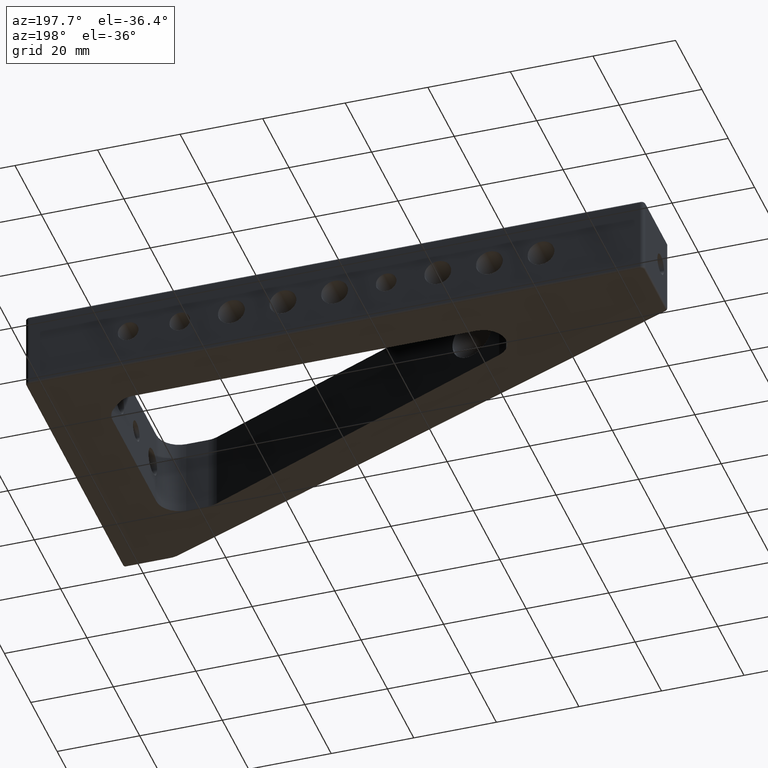
[diagram: clean part render]
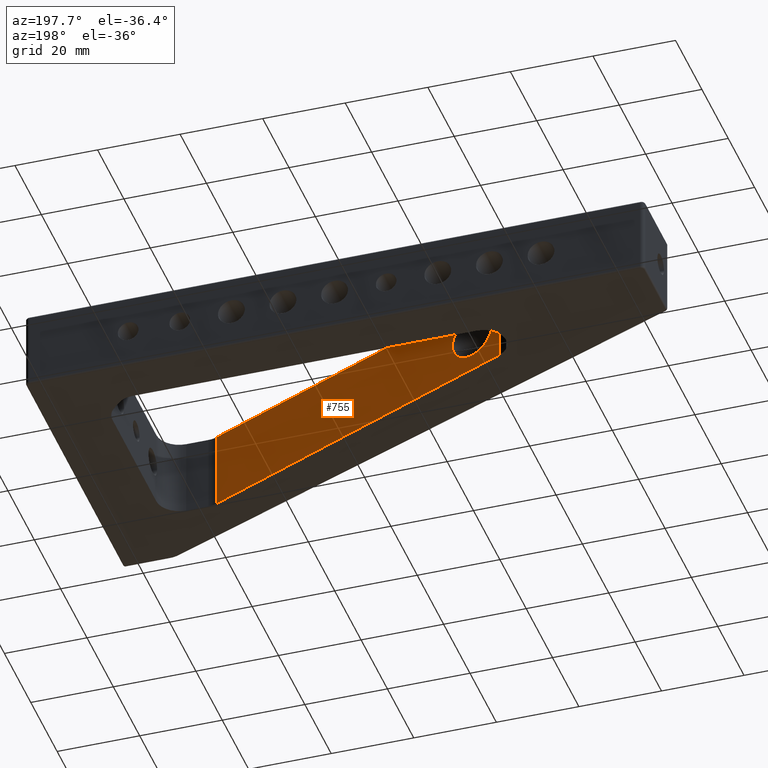
[diagram: same view with one face highlighted and labeled with its STEP entity id]
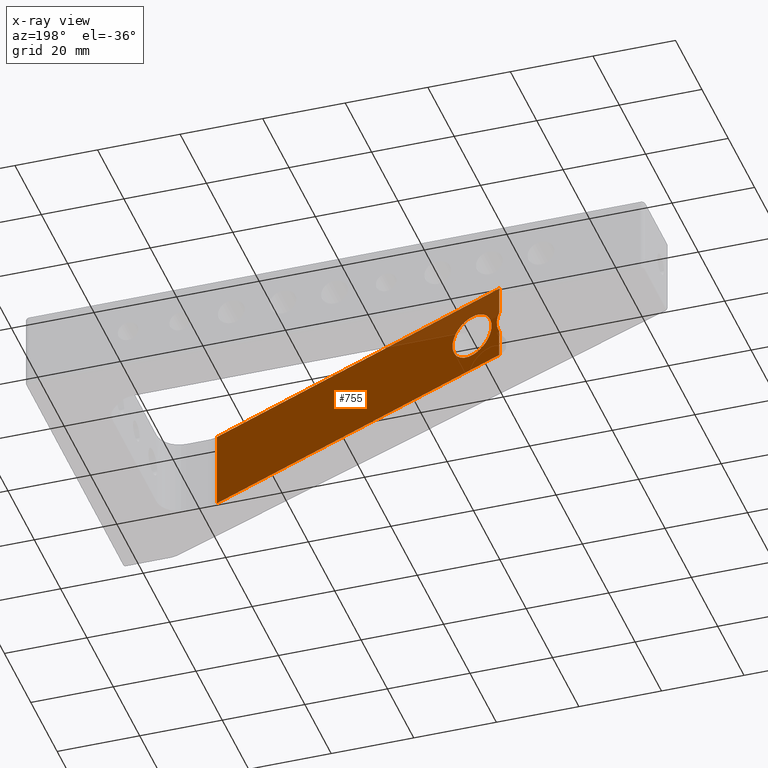
[diagram: x-ray of the same camera — body ghosted, the highlighted face saturated]
A machine part, auxiliary view. The second image highlights one B-rep face of the part: STEP entity #755.
The next image is the same camera in x-ray: the body ghosted, the highlighted face saturated — about 9% of this face is hidden behind the body in this view.
In plain terms, the highlighted planar face has unit normal (0.4043, 0.9146, -0).
Its self-contained STEP definition (entity closure, byte-faithful):
#72 = CARTESIAN_POINT ( 'NONE',  ( 776.6050239241548100, 597.4081516437140600, 9.500000000000000000 ) ) ;
#73 = DIRECTION ( 'NONE',  ( 0.9146457788347942500, -0.4042562297104307900, -0.0000000000000000000 ) ) ;
#168 = EDGE_CURVE ( 'NONE', #1269, #1252, #873, .T. ) ;
#169 = EDGE_CURVE ( 'NONE', #1213, #1275, #874, .T. ) ;
#170 = EDGE_CURVE ( 'NONE', #1275, #1269, #2053, .T. ) ;
#171 = EDGE_CURVE ( 'NONE', #1217, #1253, #864, .T. ) ;
#172 = EDGE_CURVE ( 'NONE', #1449, #1449, #2057, .T. ) ;
#215 = CARTESIAN_POINT ( 'NONE',  ( 776.6050239241548100, 597.4081516437140600, 9.500000000000000000 ) ) ;
#217 = PLANE ( 'NONE',  #644 ) ;
#219 = DIRECTION ( 'NONE',  ( 0.4042562297104308500, 0.9146457788347943700, -0.0000000000000000000 ) ) ;
#220 = DIRECTION ( 'NONE',  ( -0.9146457788347942500, 0.4042562297104307900, 0.0000000000000000000 ) ) ;
#397 = CARTESIAN_POINT ( 'NONE',  ( 696.9663568887308400, 632.6069444659131000, 9.500000000000000000 ) ) ;
#401 = CARTESIAN_POINT ( 'NONE',  ( 697.9224593770711600, 632.1843651504041200, 0.9786666869081022100 ) ) ;
#501 = DIRECTION ( 'NONE',  ( -0.0000000000000000000, -0.0000000000000000000, -1.000000000000000000 ) ) ;
#502 = CARTESIAN_POINT ( 'NONE',  ( 696.9663568887308400, 632.6069444659131000, 2.686595832992390200 ) ) ;
#503 = CARTESIAN_POINT ( 'NONE',  ( 696.9663568887308400, 632.6069444659131000, 9.500000000000000000 ) ) ;
#504 = DIRECTION ( 'NONE',  ( -0.0000000000000000000, -0.0000000000000000000, -1.000000000000000000 ) ) ;
#505 = CARTESIAN_POINT ( 'NONE',  ( 710.1671691626518200, 626.7724337488039100, -10.99999999999991800 ) ) ;
#506 = CARTESIAN_POINT ( 'NONE',  ( 697.9224593770711600, 632.1843651504041200, -0.9786666869080955500 ) ) ;
#507 = CARTESIAN_POINT ( 'NONE',  ( 696.9663568887308400, 632.6069444659131000, -2.686595832992383100 ) ) ;
#508 = CARTESIAN_POINT ( 'NONE',  ( 776.6050239241548100, 597.4081516437140600, 9.500000000000000000 ) ) ;
#510 = DIRECTION ( 'NONE',  ( -0.0000000000000000000, -0.0000000000000000000, -1.000000000000000000 ) ) ;
#511 = CARTESIAN_POINT ( 'NONE',  ( 710.1671691626518200, 626.7724337488039100, 0.0000000000000000000 ) ) ;
#512 = CARTESIAN_POINT ( 'NONE',  ( 699.1671691626518200, 631.6342268382330800, -10.99999999999991800 ) ) ;
#513 = CARTESIAN_POINT ( 'NONE',  ( 699.1671691626518200, 631.6342268382330800, -6.735557395310393700E-016 ) ) ;
#514 = CARTESIAN_POINT ( 'NONE',  ( 699.1671691626518200, 631.6342268382330800, 10.99999999999991800 ) ) ;
#515 = CARTESIAN_POINT ( 'NONE',  ( 710.1671691626518200, 626.7724337488039100, 10.99999999999991800 ) ) ;
#516 = CARTESIAN_POINT ( 'NONE',  ( 710.1671691626518200, 626.7724337488039100, 0.0000000000000000000 ) ) ;
#530 = CARTESIAN_POINT ( 'NONE',  ( 776.6050239241548100, 597.4081516437140600, -9.500000000000000000 ) ) ;
#531 = DIRECTION ( 'NONE',  ( 0.9146457788347942500, -0.4042562297104307900, -0.0000000000000000000 ) ) ;
#644 = AXIS2_PLACEMENT_3D ( 'NONE', #215, #219, #220 ) ;
#686 = EDGE_CURVE ( 'NONE', #1213, #1217, #833, .T. ) ;
#711 = EDGE_CURVE ( 'NONE', #1252, #1253, #1456, .T. ) ;
#755 = ADVANCED_FACE ( 'NONE', ( #1612, #1607 ), #217, .T. ) ;
#831 = VECTOR ( 'NONE', #73, 1000.000000000000100 ) ;
#833 = LINE ( 'NONE', #72, #831 ) ;
#863 = VECTOR ( 'NONE', #510, 1000.000000000000000 ) ;
#864 = LINE ( 'NONE', #508, #863 ) ;
#865 = VECTOR ( 'NONE', #504, 1000.000000000000000 ) ;
#866 = VECTOR ( 'NONE', #501, 1000.000000000000000 ) ;
#873 = LINE ( 'NONE', #397, #866 ) ;
#874 = LINE ( 'NONE', #503, #865 ) ;
#992 = ORIENTED_EDGE ( 'NONE', *, *, #172, .F. ) ;
#993 = ORIENTED_EDGE ( 'NONE', *, *, #168, .F. ) ;
#994 = ORIENTED_EDGE ( 'NONE', *, *, #711, .F. ) ;
#995 = ORIENTED_EDGE ( 'NONE', *, *, #171, .T. ) ;
#996 = ORIENTED_EDGE ( 'NONE', *, *, #686, .T. ) ;
#997 = ORIENTED_EDGE ( 'NONE', *, *, #169, .F. ) ;
#998 = ORIENTED_EDGE ( 'NONE', *, *, #170, .F. ) ;
#1213 = VERTEX_POINT ( 'NONE', #1892 ) ;
#1217 = VERTEX_POINT ( 'NONE', #1889 ) ;
#1252 = VERTEX_POINT ( 'NONE', #1926 ) ;
#1253 = VERTEX_POINT ( 'NONE', #1927 ) ;
#1269 = VERTEX_POINT ( 'NONE', #1943 ) ;
#1275 = VERTEX_POINT ( 'NONE', #1949 ) ;
#1343 = EDGE_LOOP ( 'NONE', ( #992 ) ) ;
#1347 = EDGE_LOOP ( 'NONE', ( #998, #997, #996, #995, #994, #993 ) ) ;
#1449 = VERTEX_POINT ( 'NONE', #1790 ) ;
#1456 = LINE ( 'NONE', #530, #1459 ) ;
#1459 = VECTOR ( 'NONE', #531, 1000.000000000000100 ) ;
#1607 = FACE_BOUND ( 'NONE', #1343, .T. ) ;
#1612 = FACE_OUTER_BOUND ( 'NONE', #1347, .T. ) ;
#1790 = CARTESIAN_POINT ( 'NONE',  ( 710.1671691626518200, 626.7724337488039100, 0.0000000000000000000 ) ) ;
#1889 = CARTESIAN_POINT ( 'NONE',  ( 776.6050239241548100, 597.4081516437140600, 9.500000000000000000 ) ) ;
#1892 = CARTESIAN_POINT ( 'NONE',  ( 696.9663568887308400, 632.6069444659131000, 9.500000000000000000 ) ) ;
#1926 = CARTESIAN_POINT ( 'NONE',  ( 696.9663568887308400, 632.6069444659131000, -9.500000000000000000 ) ) ;
#1927 = CARTESIAN_POINT ( 'NONE',  ( 776.6050239241548100, 597.4081516437140600, -9.500000000000000000 ) ) ;
#1943 = CARTESIAN_POINT ( 'NONE',  ( 696.9663568887308400, 632.6069444659131000, -2.686595832992383100 ) ) ;
#1949 = CARTESIAN_POINT ( 'NONE',  ( 696.9663568887308400, 632.6069444659131000, 2.686595832992390200 ) ) ;
#2053 =( BOUNDED_CURVE ( )  B_SPLINE_CURVE ( 3, ( #502, #401, #506, #507 ),
 .UNSPECIFIED., .F., .F. ) 
 B_SPLINE_CURVE_WITH_KNOTS ( ( 4, 4 ),
 ( 5.772847578788334200, 6.793523035570837400 ),
 .UNSPECIFIED. ) 
 CURVE ( )  GEOMETRIC_REPRESENTATION_ITEM ( )  RATIONAL_B_SPLINE_CURVE ( ( 1.000000000000000000, 0.9150530577065518800, 0.9150530577065518800, 1.000000000000000000 ) ) 
 REPRESENTATION_ITEM ( '' )  );
#2057 =( BOUNDED_CURVE ( )  B_SPLINE_CURVE ( 3, ( #511, #505, #512, #513, #514, #515, #516 ),
 .UNSPECIFIED., .T., .F. ) 
 B_SPLINE_CURVE_WITH_KNOTS ( ( 4, 3, 4 ),
 ( 0.0000000000000000000, 3.141592653589793100, 6.283185307179586200 ),
 .UNSPECIFIED. ) 
 CURVE ( )  GEOMETRIC_REPRESENTATION_ITEM ( )  RATIONAL_B_SPLINE_CURVE ( ( 1.000000000000000000, 0.3333333333333333700, 0.3333333333333333700, 1.000000000000000000, 0.3333333333333333700, 0.3333333333333333700, 1.000000000000000000 ) ) 
 REPRESENTATION_ITEM ( '' )  );